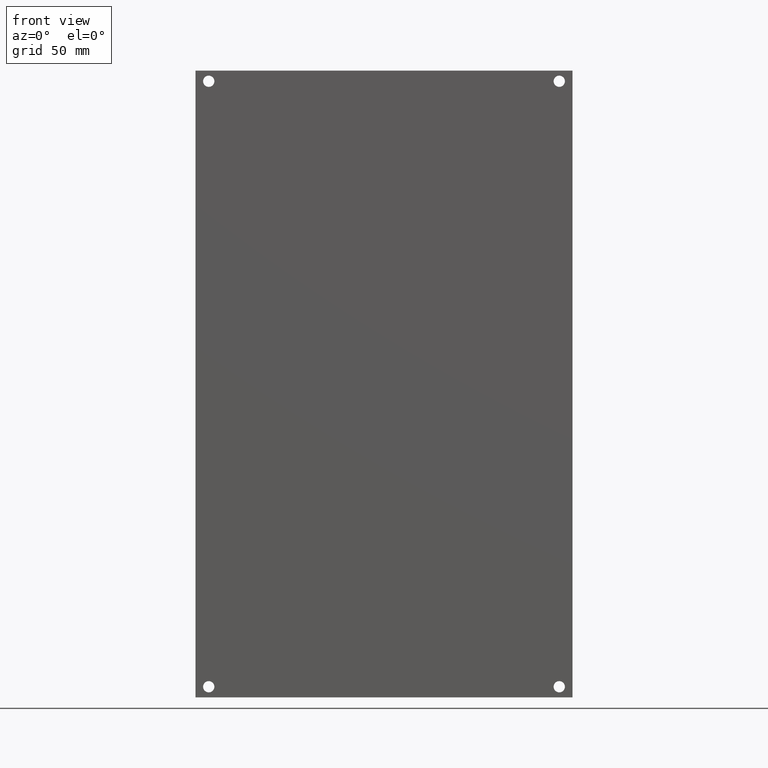
[diagram: clean part render]
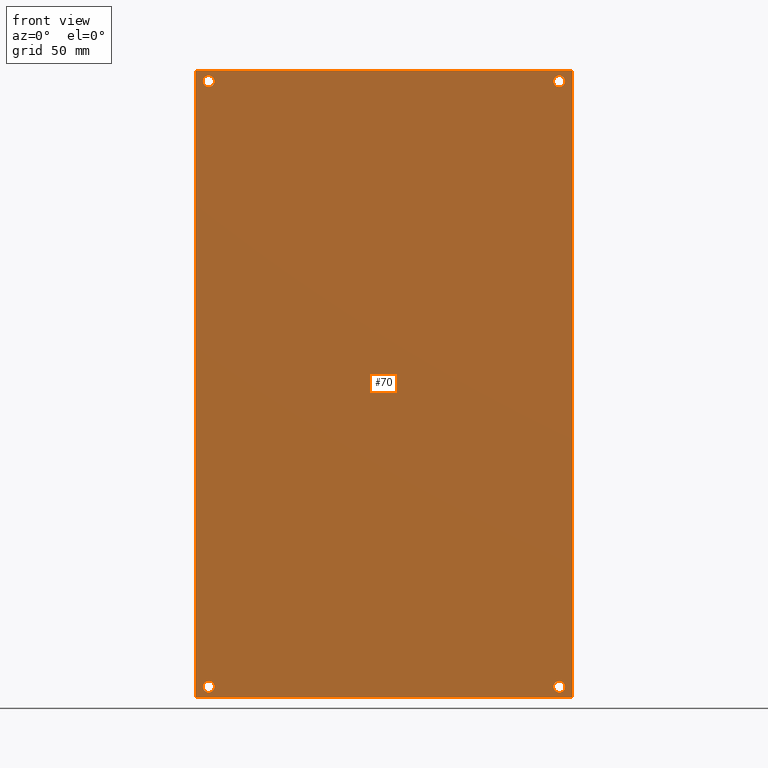
[diagram: same view with one face highlighted and labeled with its STEP entity id]
A machine part, front view. The second image highlights one B-rep face of the part: STEP entity #70.
In plain terms, the highlighted planar face has unit normal (0, -1, 0).
Its self-contained STEP definition (entity closure, byte-faithful):
#9 = DIRECTION ( 'NONE',  ( 0.0000000000000000000, 0.0000000000000000000, 1.000000000000000000 ) ) ;
#15 = DIRECTION ( 'NONE',  ( 0.0000000000000000000, -1.000000000000000000, 0.0000000000000000000 ) ) ;
#17 = CARTESIAN_POINT ( 'NONE',  ( 4.125000000000000000, 0.0000000000000000000, 7.257499999999999396 ) ) ;
#41 = LINE ( 'NONE', #409, #51 ) ;
#44 = ORIENTED_EDGE ( 'NONE', *, *, #267, .T. ) ;
#51 = VECTOR ( 'NONE', #335, 39.37007874015748143 ) ;
#52 = DIRECTION ( 'NONE',  ( 0.0000000000000000000, -0.0000000000000000000, -1.000000000000000000 ) ) ;
#61 = EDGE_LOOP ( 'NONE', ( #426, #182, #394, #44 ) ) ;
#69 = EDGE_LOOP ( 'NONE', ( #190 ) ) ;
#70 = ADVANCED_FACE ( 'NONE', ( #286, #154, #179, #300, #463 ), #211, .T. ) ;
#84 = AXIS2_PLACEMENT_3D ( 'NONE', #204, #485, #288 ) ;
#88 = CARTESIAN_POINT ( 'NONE',  ( -4.437500000000000000, 0.0000000000000000000, 7.375000000000000000 ) ) ;
#90 = CARTESIAN_POINT ( 'NONE',  ( -4.437500000000000000, 0.0000000000000000000, -7.375000000000000000 ) ) ;
#98 = CARTESIAN_POINT ( 'NONE',  ( 4.437500000000000000, 0.0000000000000000000, 7.375000000000000000 ) ) ;
#102 = CARTESIAN_POINT ( 'NONE',  ( 4.125000000000000000, 0.0000000000000000000, -6.992500000000000604 ) ) ;
#110 = LINE ( 'NONE', #90, #490 ) ;
#140 = AXIS2_PLACEMENT_3D ( 'NONE', #440, #406, #9 ) ;
#147 = VERTEX_POINT ( 'NONE', #417 ) ;
#151 = EDGE_CURVE ( 'NONE', #420, #420, #172, .T. ) ;
#154 = FACE_BOUND ( 'NONE', #361, .T. ) ;
#170 = LINE ( 'NONE', #414, #487 ) ;
#172 = CIRCLE ( 'NONE', #316, 0.1324999999999997569 ) ;
#178 = DIRECTION ( 'NONE',  ( -1.000000000000000000, -0.0000000000000000000, -0.0000000000000000000 ) ) ;
#179 = FACE_BOUND ( 'NONE', #328, .T. ) ;
#182 = ORIENTED_EDGE ( 'NONE', *, *, #441, .T. ) ;
#188 = ORIENTED_EDGE ( 'NONE', *, *, #151, .T. ) ;
#190 = ORIENTED_EDGE ( 'NONE', *, *, #395, .T. ) ;
#191 = AXIS2_PLACEMENT_3D ( 'NONE', #260, #221, #212 ) ;
#204 = CARTESIAN_POINT ( 'NONE',  ( -4.125000000000000000, 0.0000000000000000000, 7.125000000000000000 ) ) ;
#210 = EDGE_LOOP ( 'NONE', ( #188 ) ) ;
#211 = PLANE ( 'NONE',  #498 ) ;
#212 = DIRECTION ( 'NONE',  ( 0.0000000000000000000, 0.0000000000000000000, 1.000000000000000000 ) ) ;
#221 = DIRECTION ( 'NONE',  ( -0.0000000000000000000, 1.000000000000000000, -0.0000000000000000000 ) ) ;
#223 = CARTESIAN_POINT ( 'NONE',  ( -4.125000000000000000, 0.0000000000000000000, -6.992500000000000604 ) ) ;
#225 = VERTEX_POINT ( 'NONE', #235 ) ;
#235 = CARTESIAN_POINT ( 'NONE',  ( -4.437500000000000000, 0.0000000000000000000, -7.375000000000000000 ) ) ;
#252 = DIRECTION ( 'NONE',  ( 0.0000000000000000000, -0.0000000000000000000, -1.000000000000000000 ) ) ;
#255 = CARTESIAN_POINT ( 'NONE',  ( 4.437500000000000000, 0.0000000000000000000, -7.375000000000000000 ) ) ;
#259 = EDGE_CURVE ( 'NONE', #147, #147, #348, .T. ) ;
#260 = CARTESIAN_POINT ( 'NONE',  ( -4.125000000000000000, 0.0000000000000000000, -7.125000000000000000 ) ) ;
#267 = EDGE_CURVE ( 'NONE', #225, #419, #110, .T. ) ;
#286 = FACE_OUTER_BOUND ( 'NONE', #61, .T. ) ;
#288 = DIRECTION ( 'NONE',  ( 0.0000000000000000000, 0.0000000000000000000, 1.000000000000000000 ) ) ;
#291 = VERTEX_POINT ( 'NONE', #17 ) ;
#292 = CARTESIAN_POINT ( 'NONE',  ( -4.437500000000000000, 0.0000000000000000000, -7.375000000000000000 ) ) ;
#300 = FACE_BOUND ( 'NONE', #210, .T. ) ;
#315 = VECTOR ( 'NONE', #252, 39.37007874015748143 ) ;
#316 = AXIS2_PLACEMENT_3D ( 'NONE', #428, #389, #471 ) ;
#328 = EDGE_LOOP ( 'NONE', ( #368 ) ) ;
#335 = DIRECTION ( 'NONE',  ( -0.0000000000000000000, 0.0000000000000000000, 1.000000000000000000 ) ) ;
#344 = VERTEX_POINT ( 'NONE', #88 ) ;
#347 = CIRCLE ( 'NONE', #140, 0.1324999999999997569 ) ;
#348 = CIRCLE ( 'NONE', #84, 0.1324999999999997569 ) ;
#358 = VERTEX_POINT ( 'NONE', #223 ) ;
#361 = EDGE_LOOP ( 'NONE', ( #484 ) ) ;
#368 = ORIENTED_EDGE ( 'NONE', *, *, #259, .T. ) ;
#371 = CARTESIAN_POINT ( 'NONE',  ( -4.437500000000000000, 0.0000000000000000000, -7.375000000000000000 ) ) ;
#389 = DIRECTION ( 'NONE',  ( -0.0000000000000000000, 1.000000000000000000, -0.0000000000000000000 ) ) ;
#394 = ORIENTED_EDGE ( 'NONE', *, *, #472, .T. ) ;
#395 = EDGE_CURVE ( 'NONE', #291, #291, #347, .T. ) ;
#403 = DIRECTION ( 'NONE',  ( 1.000000000000000000, 0.0000000000000000000, 0.0000000000000000000 ) ) ;
#406 = DIRECTION ( 'NONE',  ( -0.0000000000000000000, 1.000000000000000000, -0.0000000000000000000 ) ) ;
#409 = CARTESIAN_POINT ( 'NONE',  ( 4.437500000000000000, 0.0000000000000000000, -7.375000000000000000 ) ) ;
#414 = CARTESIAN_POINT ( 'NONE',  ( -4.437500000000000000, 0.0000000000000000000, 7.375000000000000000 ) ) ;
#417 = CARTESIAN_POINT ( 'NONE',  ( -4.125000000000000000, 0.0000000000000000000, 7.257499999999999396 ) ) ;
#419 = VERTEX_POINT ( 'NONE', #255 ) ;
#420 = VERTEX_POINT ( 'NONE', #102 ) ;
#425 = EDGE_CURVE ( 'NONE', #419, #450, #41, .T. ) ;
#426 = ORIENTED_EDGE ( 'NONE', *, *, #425, .T. ) ;
#428 = CARTESIAN_POINT ( 'NONE',  ( 4.125000000000000000, 0.0000000000000000000, -7.125000000000000000 ) ) ;
#432 = CIRCLE ( 'NONE', #191, 0.1324999999999997569 ) ;
#440 = CARTESIAN_POINT ( 'NONE',  ( 4.125000000000000000, 0.0000000000000000000, 7.125000000000000000 ) ) ;
#441 = EDGE_CURVE ( 'NONE', #450, #344, #170, .T. ) ;
#447 = LINE ( 'NONE', #371, #315 ) ;
#450 = VERTEX_POINT ( 'NONE', #98 ) ;
#462 = EDGE_CURVE ( 'NONE', #358, #358, #432, .T. ) ;
#463 = FACE_BOUND ( 'NONE', #69, .T. ) ;
#471 = DIRECTION ( 'NONE',  ( 0.0000000000000000000, 0.0000000000000000000, 1.000000000000000000 ) ) ;
#472 = EDGE_CURVE ( 'NONE', #344, #225, #447, .T. ) ;
#484 = ORIENTED_EDGE ( 'NONE', *, *, #462, .T. ) ;
#485 = DIRECTION ( 'NONE',  ( -0.0000000000000000000, 1.000000000000000000, -0.0000000000000000000 ) ) ;
#487 = VECTOR ( 'NONE', #178, 39.37007874015748143 ) ;
#490 = VECTOR ( 'NONE', #403, 39.37007874015748143 ) ;
#498 = AXIS2_PLACEMENT_3D ( 'NONE', #292, #15, #52 ) ;